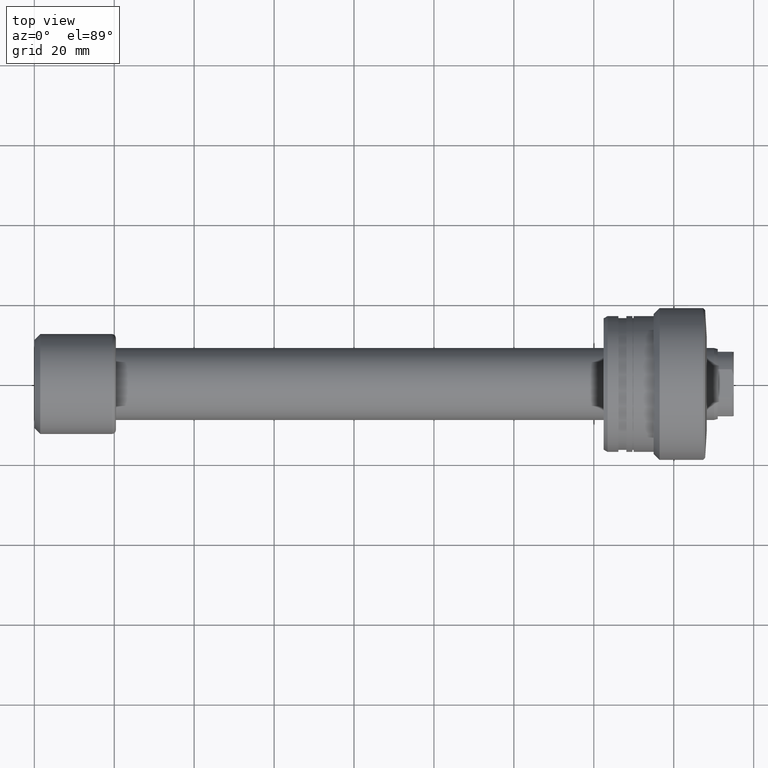
[diagram: clean part render]
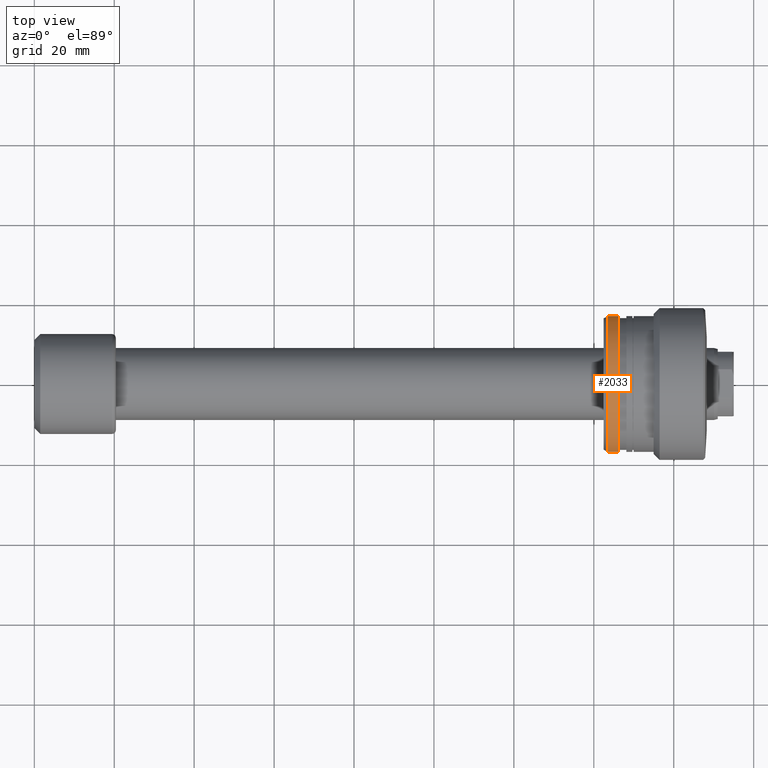
[diagram: same view with one face highlighted and labeled with its STEP entity id]
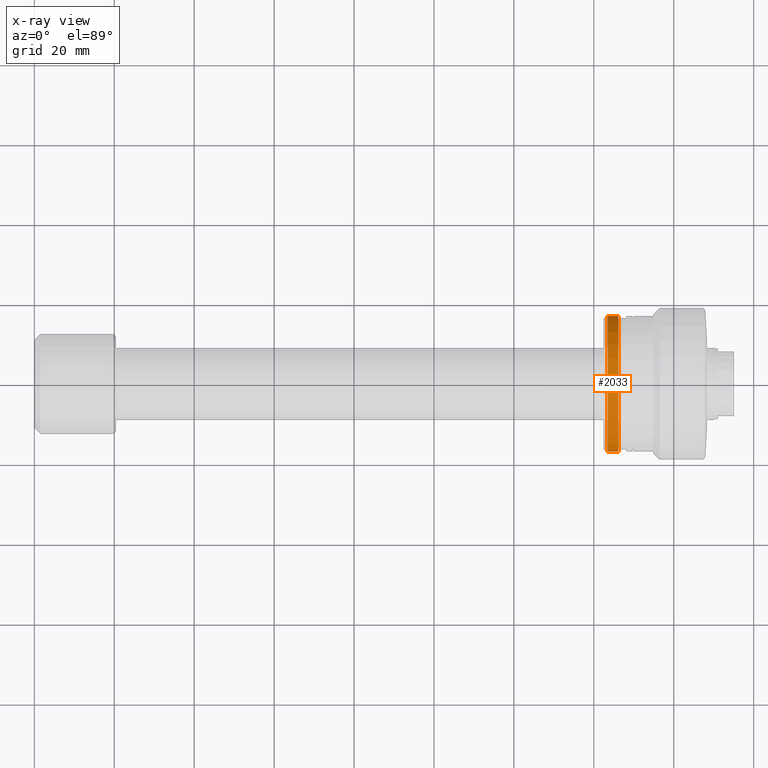
[diagram: x-ray of the same camera — body ghosted, the highlighted face saturated]
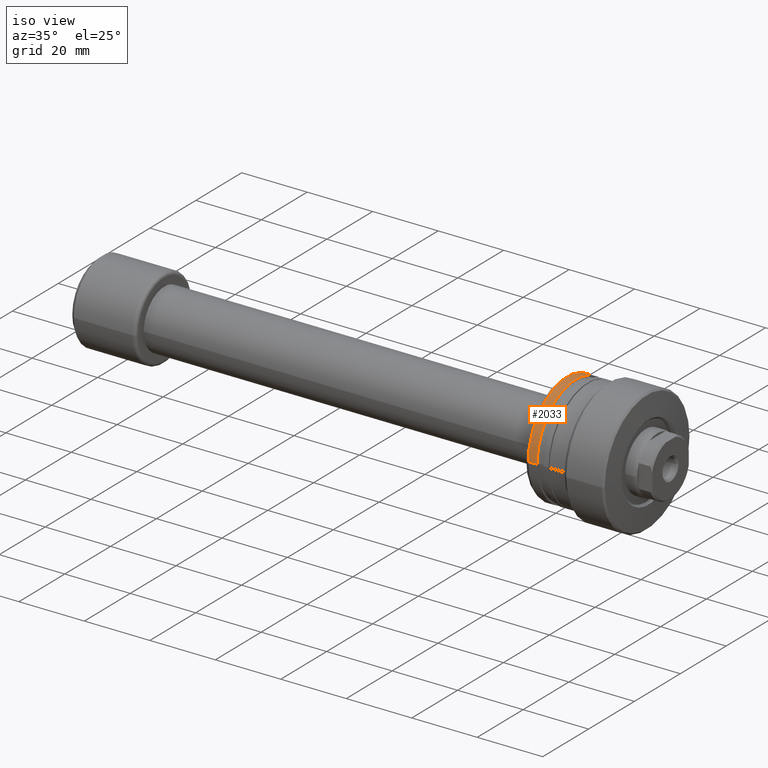
[diagram: same view with one face highlighted and labeled with its STEP entity id]
A machine part, top view. The second image highlights one B-rep face of the part: STEP entity #2033.
The next image is the same camera in x-ray: the body ghosted, the highlighted face saturated — about 0% of this face is hidden behind the body in this view.
A second angle (iso view) of the same face is appended — the face is thin or edge-on in the first view.
In plain terms, the highlighted cylindrical surface (partial cylindrical patch) has radius 17 mm, axis along (-1, 0, 0).
Its self-contained STEP definition (entity closure, byte-faithful):
#209 = VERTEX_POINT ( 'NONE', #2231 ) ;
#273 = CARTESIAN_POINT ( 'NONE',  ( -30.28002276692734185, -16.99999999999999645, 0.000000000000000000 ) ) ;
#286 = EDGE_CURVE ( 'NONE', #789, #914, #434, .T. ) ;
#319 = ORIENTED_EDGE ( 'NONE', *, *, #2334, .F. ) ;
#397 = CYLINDRICAL_SURFACE ( 'NONE', #710, 16.99999999999999645 ) ;
#401 = DIRECTION ( 'NONE',  ( -1.020425574104004196E-15, -1.000000000000000000, 0.000000000000000000 ) ) ;
#434 = LINE ( 'NONE', #273, #997 ) ;
#521 = VERTEX_POINT ( 'NONE', #840 ) ;
#619 = DIRECTION ( 'NONE',  ( -1.000000000000000000, 9.810081908519753690E-16, -0.000000000000000000 ) ) ;
#668 = DIRECTION ( 'NONE',  ( -1.020425574104004591E-15, -1.000000000000000000, 0.000000000000000000 ) ) ;
#710 = AXIS2_PLACEMENT_3D ( 'NONE', #1320, #1307, #1702 ) ;
#789 = VERTEX_POINT ( 'NONE', #1717 ) ;
#840 = CARTESIAN_POINT ( 'NONE',  ( -25.50000000000014566, 16.99999999999999289, 0.000000000000000000 ) ) ;
#914 = VERTEX_POINT ( 'NONE', #1079 ) ;
#997 = VECTOR ( 'NONE', #1754, 1000.000000000000000 ) ;
#1026 = DIRECTION ( 'NONE',  ( -1.000000000000000000, 9.810081908519753690E-16, -0.000000000000000000 ) ) ;
#1036 = AXIS2_PLACEMENT_3D ( 'NONE', #2168, #1026, #668 ) ;
#1072 = ORIENTED_EDGE ( 'NONE', *, *, #1616, .T. ) ;
#1079 = CARTESIAN_POINT ( 'NONE',  ( -25.50000000000017764, -17.00000000000000355, 2.081899558550500674E-15 ) ) ;
#1294 = VECTOR ( 'NONE', #1419, 1000.000000000000000 ) ;
#1307 = DIRECTION ( 'NONE',  ( -1.000000000000000000, 9.810081908519753690E-16, -0.000000000000000000 ) ) ;
#1320 = CARTESIAN_POINT ( 'NONE',  ( -30.28002276692732408, 0.000000000000000000, 0.000000000000000000 ) ) ;
#1419 = DIRECTION ( 'NONE',  ( -1.000000000000000000, 9.810081908519753690E-16, -0.000000000000000000 ) ) ;
#1475 = EDGE_LOOP ( 'NONE', ( #1793, #1072, #319, #2427 ) ) ;
#1616 = EDGE_CURVE ( 'NONE', #209, #521, #2349, .T. ) ;
#1702 = DIRECTION ( 'NONE',  ( -1.020425574104004394E-15, -1.000000000000000000, 0.000000000000000000 ) ) ;
#1717 = CARTESIAN_POINT ( 'NONE',  ( -22.80878161770237966, -17.00000000000000000, 0.000000000000000000 ) ) ;
#1754 = DIRECTION ( 'NONE',  ( -1.000000000000000000, 9.810081908519753690E-16, -0.000000000000000000 ) ) ;
#1793 = ORIENTED_EDGE ( 'NONE', *, *, #2208, .T. ) ;
#1895 = FACE_OUTER_BOUND ( 'NONE', #1475, .T. ) ;
#2011 = AXIS2_PLACEMENT_3D ( 'NONE', #2315, #619, #401 ) ;
#2033 = ADVANCED_FACE ( 'NONE', ( #1895 ), #397, .T. ) ;
#2050 = CIRCLE ( 'NONE', #1036, 16.99999999999999289 ) ;
#2168 = CARTESIAN_POINT ( 'NONE',  ( -22.80878161770236190, -7.329348763220012769E-15, 0.000000000000000000 ) ) ;
#2181 = CARTESIAN_POINT ( 'NONE',  ( -30.28002276692730632, 16.99999999999999645, 2.081899558550499885E-15 ) ) ;
#2208 = EDGE_CURVE ( 'NONE', #789, #209, #2050, .T. ) ;
#2231 = CARTESIAN_POINT ( 'NONE',  ( -22.80878161770234414, 16.99999999999998579, 2.081899558550499885E-15 ) ) ;
#2315 = CARTESIAN_POINT ( 'NONE',  ( -25.50000000000015987, -4.689241486814468610E-15, 0.000000000000000000 ) ) ;
#2334 = EDGE_CURVE ( 'NONE', #914, #521, #2418, .T. ) ;
#2349 = LINE ( 'NONE', #2181, #1294 ) ;
#2418 = CIRCLE ( 'NONE', #2011, 17.00000000000000000 ) ;
#2427 = ORIENTED_EDGE ( 'NONE', *, *, #286, .F. ) ;